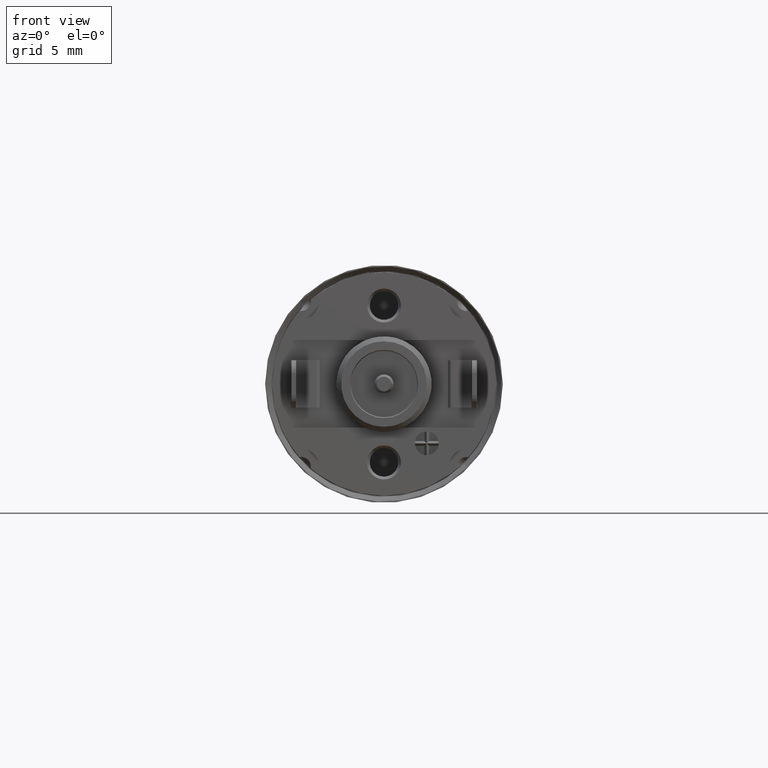
[diagram: clean part render]
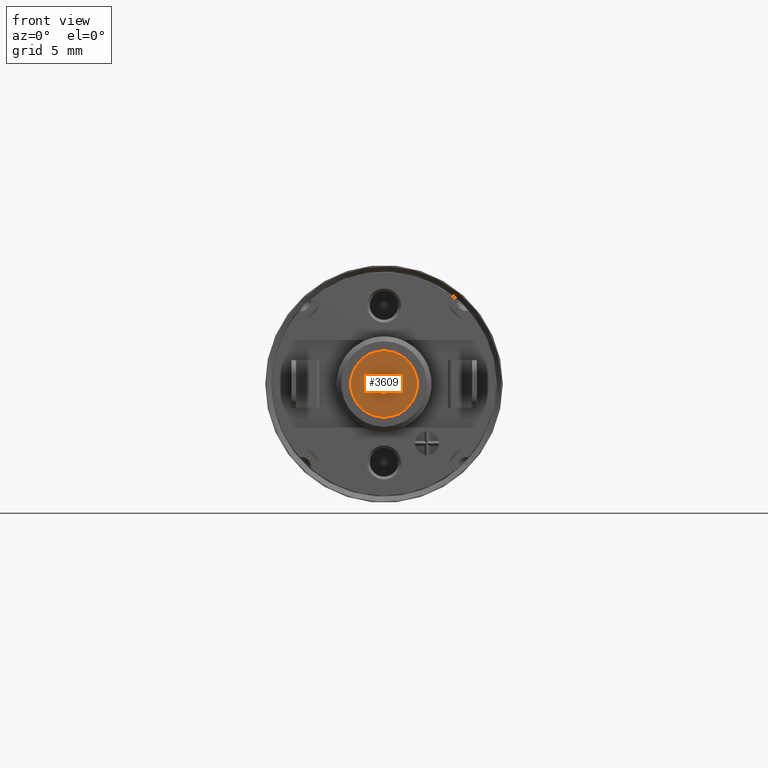
[diagram: same view with one face highlighted and labeled with its STEP entity id]
A machine part, front view. The second image highlights one B-rep face of the part: STEP entity #3609.
In plain terms, the highlighted planar face has unit normal (0, 1, 0).
Its self-contained STEP definition (entity closure, byte-faithful):
#994=CARTESIAN_POINT('',(0.E0,-2.44E1,0.E0));
#995=DIRECTION('',(0.E0,-1.E0,0.E0));
#996=DIRECTION('',(0.E0,0.E0,-1.E0));
#997=AXIS2_PLACEMENT_3D('',#994,#995,#996);
#1003=CARTESIAN_POINT('',(0.E0,-2.44E1,0.E0));
#1004=DIRECTION('',(0.E0,1.E0,0.E0));
#1005=DIRECTION('',(0.E0,0.E0,-1.E0));
#1006=AXIS2_PLACEMENT_3D('',#1003,#1004,#1005);
#1008=CARTESIAN_POINT('',(0.E0,-2.44E1,0.E0));
#1009=DIRECTION('',(0.E0,1.E0,0.E0));
#1010=DIRECTION('',(-1.E0,0.E0,0.E0));
#1011=AXIS2_PLACEMENT_3D('',#1008,#1009,#1010);
#1013=CARTESIAN_POINT('',(0.E0,-2.44E1,0.E0));
#1014=DIRECTION('',(0.E0,1.E0,0.E0));
#1015=DIRECTION('',(1.E0,0.E0,0.E0));
#1016=AXIS2_PLACEMENT_3D('',#1013,#1014,#1015);
#1853=CARTESIAN_POINT('',(0.E0,-2.44E1,-1.4E0));
#1855=VERTEX_POINT('',#1853);
#1863=CARTESIAN_POINT('',(0.E0,-2.44E1,1.4E0));
#1865=VERTEX_POINT('',#1863);
#1873=CARTESIAN_POINT('',(-4.E-1,-2.44E1,0.E0));
#1874=CARTESIAN_POINT('',(4.E-1,-2.44E1,0.E0));
#1875=VERTEX_POINT('',#1873);
#1876=VERTEX_POINT('',#1874);
#3594=CARTESIAN_POINT('',(0.E0,-2.44E1,0.E0));
#3595=DIRECTION('',(0.E0,1.E0,0.E0));
#3596=DIRECTION('',(0.E0,0.E0,-1.E0));
#3597=AXIS2_PLACEMENT_3D('',#3594,#3595,#3596);
#3598=PLANE('',#3597);
#3599=ORIENTED_EDGE('',*,*,#3573,.F.);
#3600=ORIENTED_EDGE('',*,*,#3589,.T.);
#3601=EDGE_LOOP('',(#3599,#3600));
#3602=FACE_OUTER_BOUND('',#3601,.F.);
#3604=ORIENTED_EDGE('',*,*,#3603,.F.);
#3606=ORIENTED_EDGE('',*,*,#3605,.F.);
#3607=EDGE_LOOP('',(#3604,#3606));
#3608=FACE_BOUND('',#3607,.F.);
#3609=ADVANCED_FACE('',(#3602,#3608),#3598,.F.);
#998=CIRCLE('',#997,1.4E0);
#1007=CIRCLE('',#1006,1.4E0);
#1012=CIRCLE('',#1011,4.E-1);
#1017=CIRCLE('',#1016,4.E-1);
#3573=EDGE_CURVE('',#1855,#1865,#998,.T.);
#3589=EDGE_CURVE('',#1855,#1865,#1007,.T.);
#3603=EDGE_CURVE('',#1875,#1876,#1012,.T.);
#3605=EDGE_CURVE('',#1876,#1875,#1017,.T.);